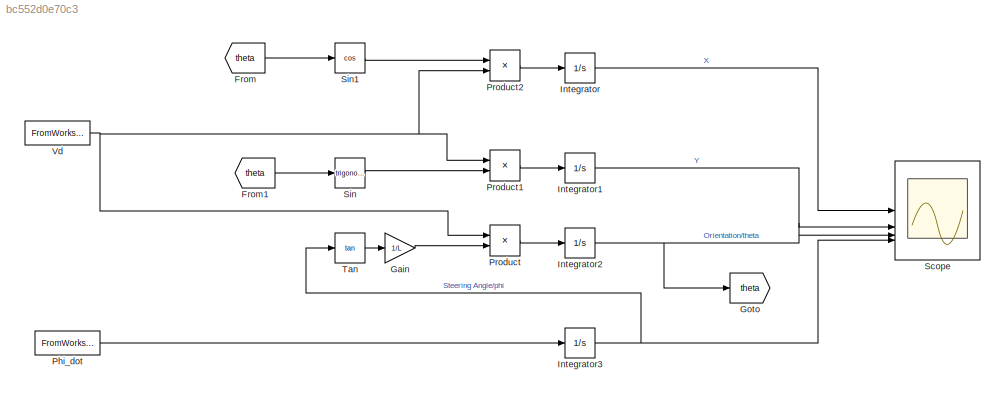
MODEL slx_bc552d0e70c3
KIND model
CONFIG AbsTol = auto
CONFIG EnableMultiTasking = off
CONFIG FixedStep = 1e-5
CONFIG MaxStep = auto
CONFIG MinStep = auto
CONFIG RelTol = 1e-3
CONFIG SampleTimeConstraint = Unconstrained
CONFIG SolverName = FixedStepAuto
CONFIG StartTime = 0.0
CONFIG StopTime = 10.0
BLOCK [From] From
  GotoTag = theta
BLOCK [From] From1
  GotoTag = theta
BLOCK [Gain] Gain
  Gain = 1/L
BLOCK [Goto] Goto
  GotoTag = theta
BLOCK [Integrator] Integrator
  InitialCondition = x
BLOCK [Integrator] Integrator1
  InitialCondition = y
BLOCK [Integrator] Integrator2
  InitialCondition = theta
BLOCK [Integrator] Integrator3
  InitialCondition = phi
BLOCK [FromWorkspace] Phi_dot
  VariableName = phi
BLOCK [Product] Product
BLOCK [Product] Product1
BLOCK [Product] Product2
BLOCK [Scope] Scope
  Floating = off
  NumInputPorts = 4
  ScopeSpecificationString = Simulink.scopes.TimeScopeBlockCfg('CurrentConfiguration', extmgr.ConfigurationSet(extmgr.Configuration('Core','General UI',true),extmgr.Configuration('Core','Source UI',true),extmgr.Configuration('Sources','WiredSimulink',true),extmgr.Configuration('Visuals','Time Domain',true,'SerializedDisplays',{struct('MinYLimReal','-1.88148','MaxYLimReal','7.88518','YLabelReal','','MinYLimMag','0.00000','MaxY...<+3851ch>
BLOCK [Trigonometry] Sin
BLOCK [Trigonometry] Sin1
  Operator = cos
BLOCK [Trigonometry] Tan
  Operator = tan
BLOCK [FromWorkspace] Vd
  VariableName = Vd
LINE From1:1 -> Sin:1
LINE From:1 -> Sin1:1
LINE Gain:1 -> Product:2
LINE Integrator1:1 -> Scope:2
NET Integrator2:1 -> Goto:1, Scope:3
NET Integrator3:1 -> Scope:4, Tan:1
LINE Integrator:1 -> Scope:1
LINE Phi_dot:1 -> Integrator3:1
LINE Product1:1 -> Integrator1:1
LINE Product2:1 -> Integrator:1
LINE Product:1 -> Integrator2:1
LINE Sin1:1 -> Product2:1
LINE Sin:1 -> Product1:2
LINE Tan:1 -> Gain:1
NET Vd:1 -> Product1:1, Product2:2, Product:1
note: NET lines group one-source signal fan-out (src -> all destinations, sorted); 1:1 wires keep LINE
